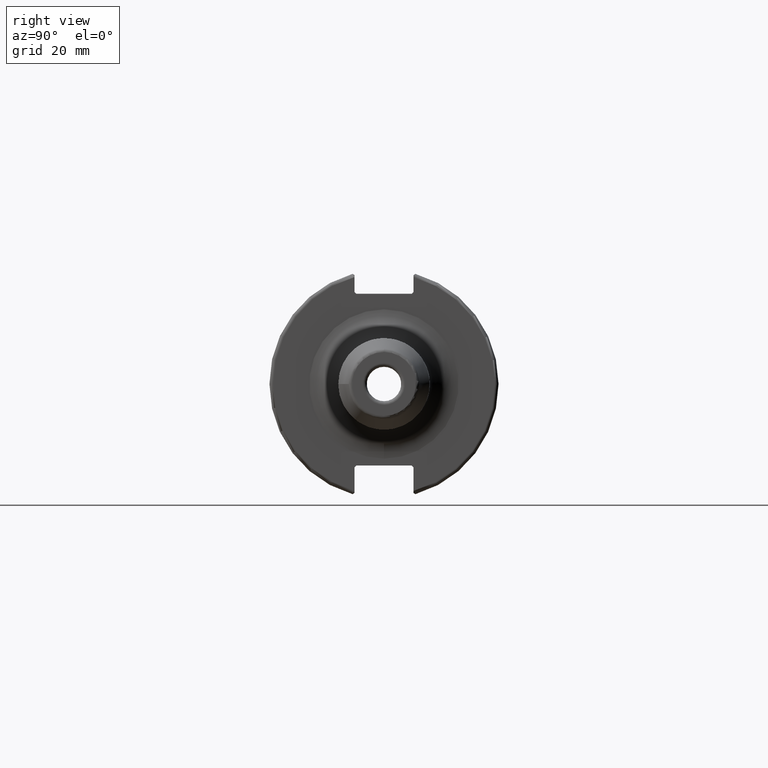
[diagram: clean part render]
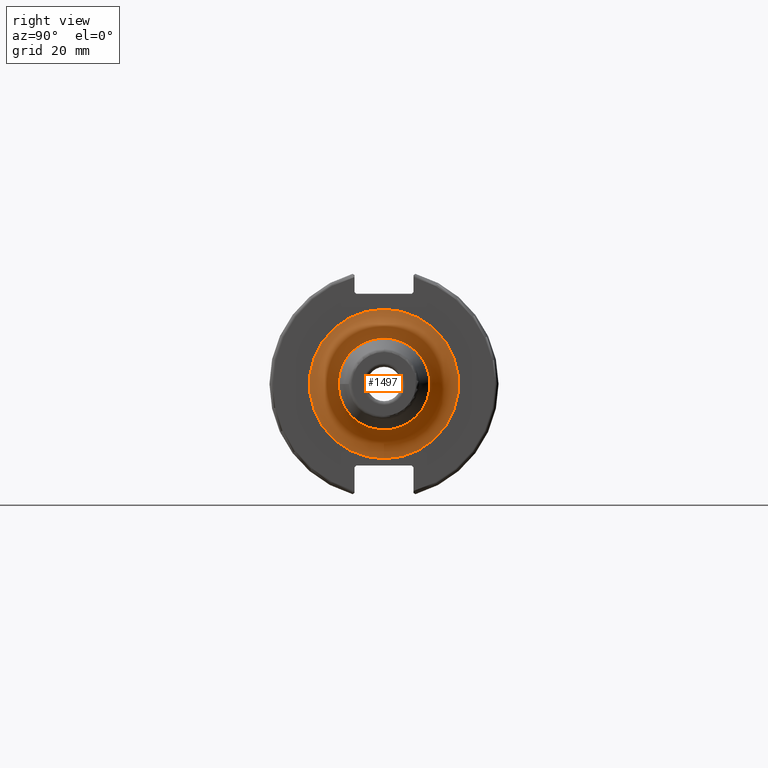
[diagram: same view with one face highlighted and labeled with its STEP entity id]
A machine part, right view. The second image highlights one B-rep face of the part: STEP entity #1497.
In plain terms, the highlighted toroidal blend (fillet) surface has major radius 20.7 mm and minor (blend) radius 8 mm.
Its self-contained STEP definition (entity closure, byte-faithful):
#365=FACE_OUTER_BOUND('',#453,.T.);
#453=EDGE_LOOP('',(#1050,#1051,#1052,#1053,#1054));
#559=CIRCLE('',#1620,12.7);
#560=CIRCLE('',#1621,12.7);
#561=CIRCLE('',#1623,8.);
#562=CIRCLE('',#1624,20.7);
#633=VERTEX_POINT('',#2309);
#634=VERTEX_POINT('',#2311);
#637=VERTEX_POINT('',#2362);
#795=EDGE_CURVE('',#634,#633,#559,.T.);
#796=EDGE_CURVE('',#633,#634,#560,.T.);
#799=EDGE_CURVE('',#634,#637,#561,.T.);
#800=EDGE_CURVE('',#637,#637,#562,.T.);
#1050=ORIENTED_EDGE('',*,*,#796,.T.);
#1051=ORIENTED_EDGE('',*,*,#799,.T.);
#1052=ORIENTED_EDGE('',*,*,#800,.T.);
#1053=ORIENTED_EDGE('',*,*,#799,.F.);
#1054=ORIENTED_EDGE('',*,*,#795,.T.);
#1483=TOROIDAL_SURFACE('',#1622,20.7,8.);
#1497=ADVANCED_FACE('',(#365),#1483,.F.);
#1620=AXIS2_PLACEMENT_3D('',#2312,#1825,#1826);
#1621=AXIS2_PLACEMENT_3D('',#2313,#1827,#1828);
#1622=AXIS2_PLACEMENT_3D('',#2361,#1829,#1830);
#1623=AXIS2_PLACEMENT_3D('',#2363,#1831,#1832);
#1624=AXIS2_PLACEMENT_3D('',#2364,#1833,#1834);
#1825=DIRECTION('center_axis',(-1.,0.,0.));
#1826=DIRECTION('ref_axis',(0.,-1.,-1.22464679914735E-16));
#1827=DIRECTION('center_axis',(-1.,0.,0.));
#1828=DIRECTION('ref_axis',(0.,-1.,-1.22464679914735E-16));
#1829=DIRECTION('center_axis',(-1.,0.,0.));
#1830=DIRECTION('ref_axis',(0.,0.,1.));
#1831=DIRECTION('center_axis',(0.,-1.,1.22464679914735E-16));
#1832=DIRECTION('ref_axis',(0.,-1.22464679914735E-16,-1.));
#1833=DIRECTION('center_axis',(1.,0.,0.));
#1834=DIRECTION('ref_axis',(0.,-1.,-1.22464679914735E-16));
#2309=CARTESIAN_POINT('',(27.05,-12.7,-1.55530143491714E-15));
#2311=CARTESIAN_POINT('',(27.05,-1.55530143491714E-15,-12.7));
#2312=CARTESIAN_POINT('Origin',(27.05,0.,0.));
#2313=CARTESIAN_POINT('Origin',(27.05,0.,0.));
#2361=CARTESIAN_POINT('Origin',(27.05,0.,0.));
#2362=CARTESIAN_POINT('',(19.05,-2.53501887423502E-15,-20.7));
#2363=CARTESIAN_POINT('Origin',(27.05,-2.53501887423502E-15,-20.7));
#2364=CARTESIAN_POINT('Origin',(19.05,0.,0.));